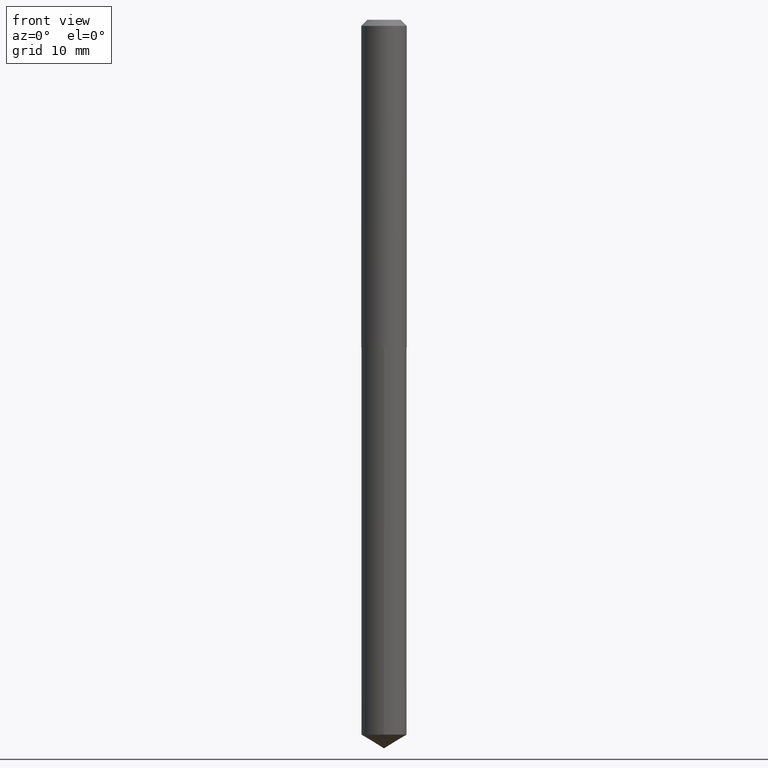
[diagram: clean part render]
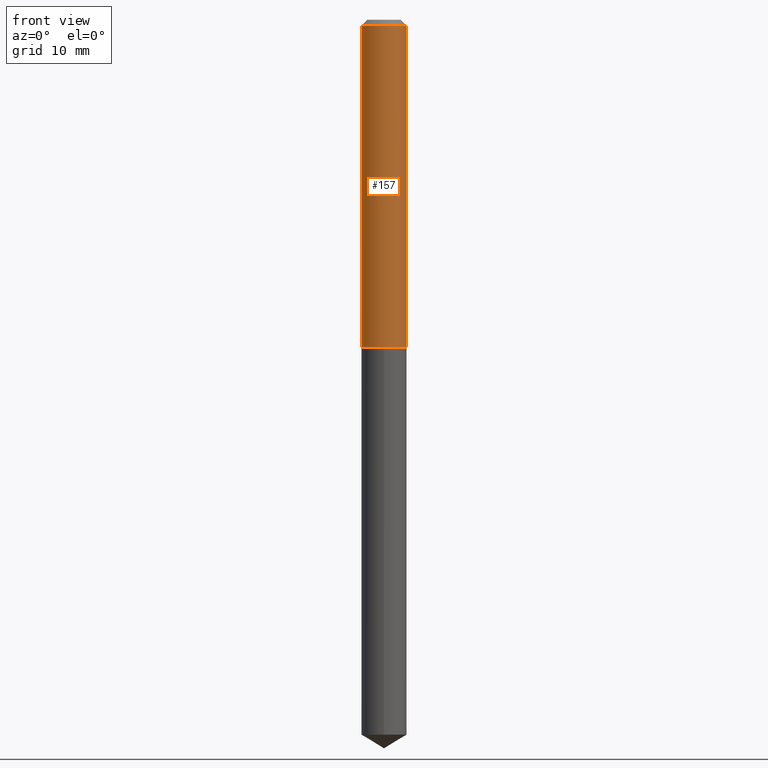
[diagram: same view with one face highlighted and labeled with its STEP entity id]
A machine part, front view. The second image highlights one B-rep face of the part: STEP entity #157.
In plain terms, the highlighted cylindrical surface (edge-blend (fillet) strip) has radius 2.8994 mm, axis along (-0, 0, 1).
Its self-contained STEP definition (entity closure, byte-faithful):
#2 = CIRCLE ( 'NONE', #54, 0.1141500000000000015 ) ;
#26 = VERTEX_POINT ( 'NONE', #341 ) ;
#49 = ORIENTED_EDGE ( 'NONE', *, *, #70, .F. ) ;
#54 = AXIS2_PLACEMENT_3D ( 'NONE', #63, #389, #96 ) ;
#62 = CARTESIAN_POINT ( 'NONE',  ( 0.000000000000000000, 0.000000000000000000, 0.000000000000000000 ) ) ;
#63 = CARTESIAN_POINT ( 'NONE',  ( 7.642090019328607041E-31, -1.091087918388490883E-16, -0.03125000000000022898 ) ) ;
#64 = EDGE_CURVE ( 'NONE', #328, #236, #246, .T. ) ;
#66 = CARTESIAN_POINT ( 'NONE',  ( -0.1141500000000000986, 8.110845328701550628E-16, -5.614964405525979576E-30 ) ) ;
#67 = AXIS2_PLACEMENT_3D ( 'NONE', #213, #336, #182 ) ;
#70 = EDGE_CURVE ( 'NONE', #26, #236, #2, .T. ) ;
#74 = VECTOR ( 'NONE', #279, 39.37007874015748143 ) ;
#93 = CARTESIAN_POINT ( 'NONE',  ( 0.1141500000000000986, -7.971051896578880132E-16, 5.566155789571065091E-30 ) ) ;
#96 = DIRECTION ( 'NONE',  ( 1.000000000000000000, -6.982962677686266711E-15, 0.000000000000000000 ) ) ;
#129 = DIRECTION ( 'NONE',  ( -2.445468806185136597E-29, 3.491481338843145583E-15, 1.000000000000000000 ) ) ;
#130 = CARTESIAN_POINT ( 'NONE',  ( 0.1141500000000000015, -9.062139814967364236E-16, -0.03125000000000022898 ) ) ;
#136 = EDGE_CURVE ( 'NONE', #238, #328, #188, .T. ) ;
#144 = EDGE_LOOP ( 'NONE', ( #266, #294, #185, #49 ) ) ;
#157 = ADVANCED_FACE ( 'NONE', ( #335 ), #309, .T. ) ;
#166 = EDGE_CURVE ( 'NONE', #238, #26, #337, .T. ) ;
#182 = DIRECTION ( 'NONE',  ( 1.000000000000000000, -6.982962677686269866E-15, 0.000000000000000000 ) ) ;
#185 = ORIENTED_EDGE ( 'NONE', *, *, #64, .T. ) ;
#187 = DIRECTION ( 'NONE',  ( -2.445468806185136877E-29, 3.491481338843145188E-15, 1.000000000000000000 ) ) ;
#188 = CIRCLE ( 'NONE', #67, 0.1141500000000001958 ) ;
#213 = CARTESIAN_POINT ( 'NONE',  ( 4.023040733055167724E-29, -5.743835950530858234E-15, -1.645099999999999785 ) ) ;
#219 = CARTESIAN_POINT ( 'NONE',  ( 0.1141500000000001958, -6.540941140188746740E-15, -1.645099999999999785 ) ) ;
#223 = CARTESIAN_POINT ( 'NONE',  ( -0.1141500000000001958, -4.932751417660702481E-15, -1.645099999999999785 ) ) ;
#234 = AXIS2_PLACEMENT_3D ( 'NONE', #62, #129, #313 ) ;
#236 = VERTEX_POINT ( 'NONE', #130 ) ;
#238 = VERTEX_POINT ( 'NONE', #223 ) ;
#246 = LINE ( 'NONE', #93, #74 ) ;
#266 = ORIENTED_EDGE ( 'NONE', *, *, #166, .F. ) ;
#279 = DIRECTION ( 'NONE',  ( -2.445468806185136877E-29, 3.491481338843145188E-15, 1.000000000000000000 ) ) ;
#294 = ORIENTED_EDGE ( 'NONE', *, *, #136, .T. ) ;
#309 = CYLINDRICAL_SURFACE ( 'NONE', #234, 0.1141500000000000986 ) ;
#313 = DIRECTION ( 'NONE',  ( 1.000000000000000000, -6.982962677686266711E-15, 4.876176775795935232E-29 ) ) ;
#328 = VERTEX_POINT ( 'NONE', #219 ) ;
#335 = FACE_OUTER_BOUND ( 'NONE', #144, .T. ) ;
#336 = DIRECTION ( 'NONE',  ( -2.445468806185136597E-29, 3.491481338843145583E-15, 1.000000000000000000 ) ) ;
#337 = LINE ( 'NONE', #66, #354 ) ;
#341 = CARTESIAN_POINT ( 'NONE',  ( -0.1141500000000000015, -2.115387838314697520E-15, -0.03125000000000022898 ) ) ;
#354 = VECTOR ( 'NONE', #187, 39.37007874015748143 ) ;
#389 = DIRECTION ( 'NONE',  ( -2.445468806185136597E-29, 3.491481338843145583E-15, 1.000000000000000000 ) ) ;